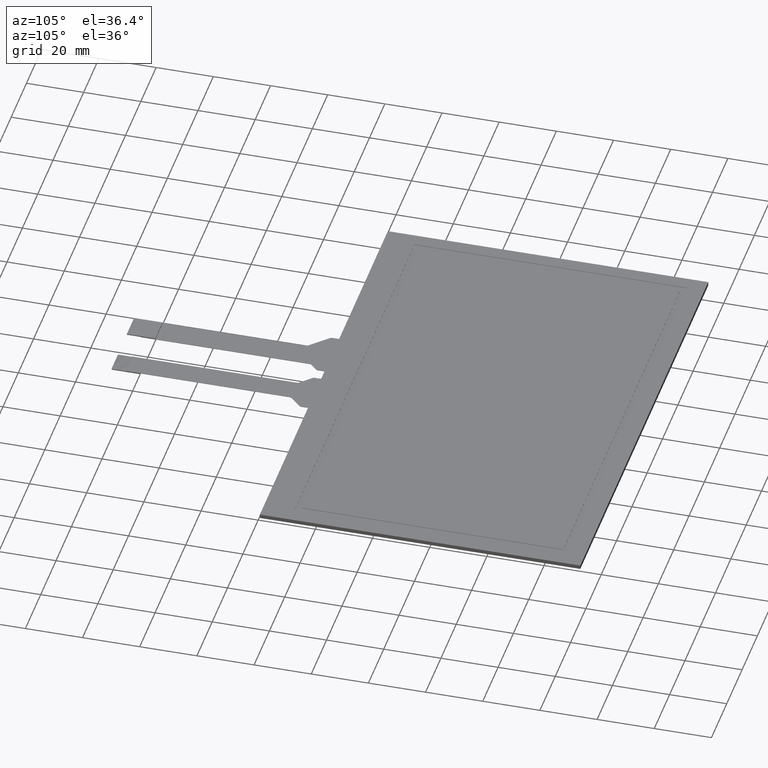
[diagram: clean part render]
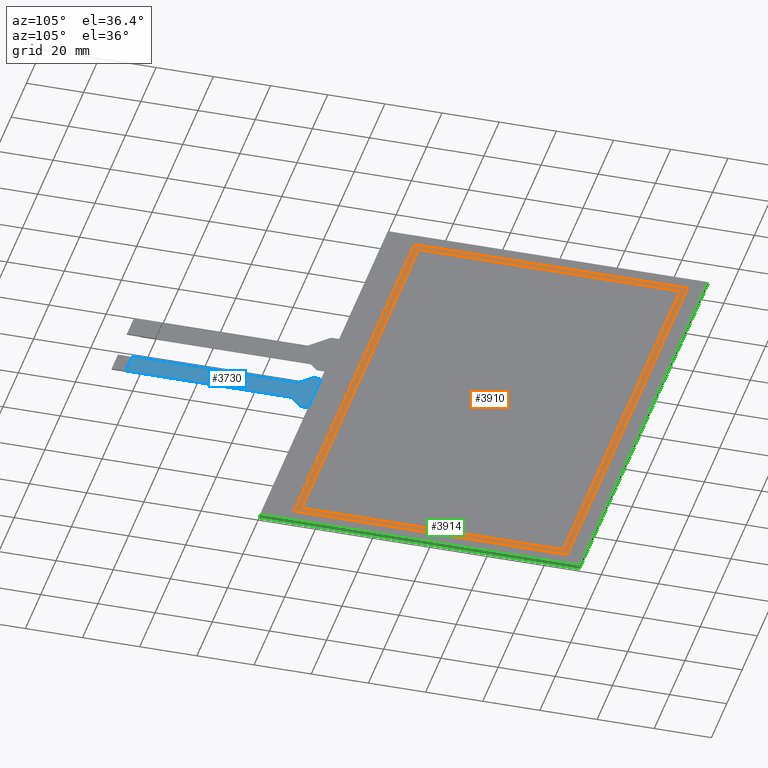
[diagram: same view with three faces highlighted in distinct colors, each labeled with its STEP entity id]
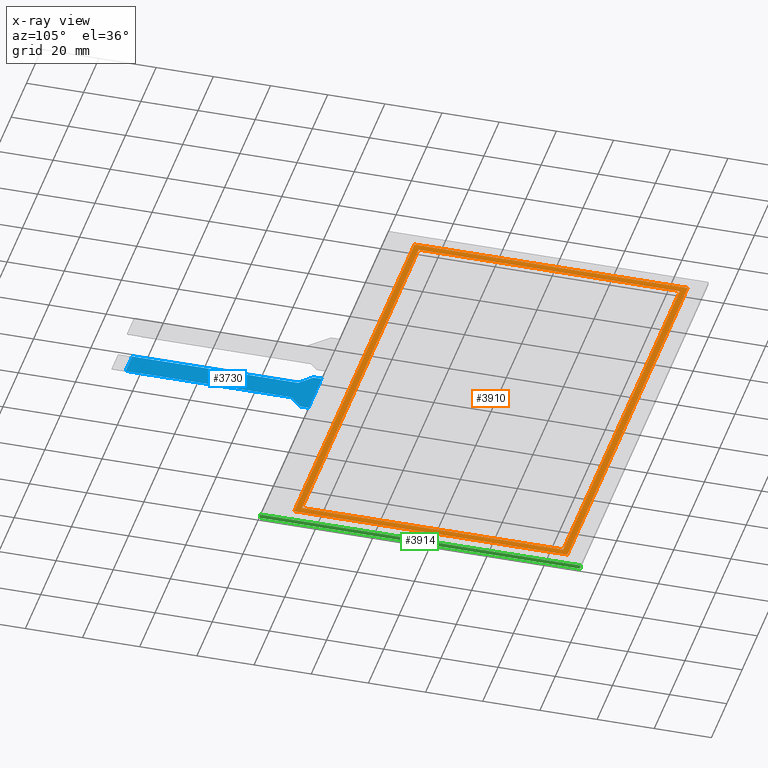
[diagram: x-ray of the same camera — body ghosted, the three highlighted faces saturated]
A machine part, auxiliary view with three faces highlighted in distinct colors.
The next image is the same camera in x-ray (body ghosted, the three faces saturated) — at least one of them is partly hidden behind the body in this view.
Their STEP definitions:

[orange] entity #3910 — the highlighted planar face has unit normal (0, 0, -1).
#46=FACE_BOUND('',#601,.T.);
#220=PLANE('',#4144);
#410=FACE_OUTER_BOUND('',#600,.T.);
#600=EDGE_LOOP('',(#3668,#3669,#3670,#3671));
#601=EDGE_LOOP('',(#3672,#3673,#3674,#3675));
#1106=LINE('',#6152,#1634);
#1110=LINE('',#6159,#1638);
#1113=LINE('',#6165,#1641);
#1115=LINE('',#6168,#1643);
#1118=LINE('',#6176,#1646);
#1122=LINE('',#6183,#1650);
#1125=LINE('',#6189,#1653);
#1127=LINE('',#6192,#1655);
#1634=VECTOR('',#5046,10.);
#1638=VECTOR('',#5052,10.);
#1641=VECTOR('',#5057,10.);
#1643=VECTOR('',#5061,10.);
#1646=VECTOR('',#5066,10.);
#1650=VECTOR('',#5072,10.);
#1653=VECTOR('',#5077,10.);
#1655=VECTOR('',#5081,10.);
#2038=VERTEX_POINT('',#6149);
#2039=VERTEX_POINT('',#6151);
#2041=VERTEX_POINT('',#6157);
#2043=VERTEX_POINT('',#6163);
#2046=VERTEX_POINT('',#6173);
#2047=VERTEX_POINT('',#6175);
#2049=VERTEX_POINT('',#6181);
#2051=VERTEX_POINT('',#6187);
#2578=EDGE_CURVE('',#2038,#2039,#1106,.T.);
#2582=EDGE_CURVE('',#2041,#2038,#1110,.T.);
#2585=EDGE_CURVE('',#2043,#2041,#1113,.T.);
#2587=EDGE_CURVE('',#2039,#2043,#1115,.T.);
#2590=EDGE_CURVE('',#2046,#2047,#1118,.T.);
#2594=EDGE_CURVE('',#2049,#2046,#1122,.T.);
#2597=EDGE_CURVE('',#2051,#2049,#1125,.T.);
#2599=EDGE_CURVE('',#2047,#2051,#1127,.T.);
#3668=ORIENTED_EDGE('',*,*,#2599,.F.);
#3669=ORIENTED_EDGE('',*,*,#2590,.F.);
#3670=ORIENTED_EDGE('',*,*,#2594,.F.);
#3671=ORIENTED_EDGE('',*,*,#2597,.F.);
#3672=ORIENTED_EDGE('',*,*,#2587,.F.);
#3673=ORIENTED_EDGE('',*,*,#2578,.F.);
#3674=ORIENTED_EDGE('',*,*,#2582,.F.);
#3675=ORIENTED_EDGE('',*,*,#2585,.F.);
#3910=ADVANCED_FACE('',(#410,#46),#220,.F.);
#4144=AXIS2_PLACEMENT_3D('',#6193,#5082,#5083);
#5046=DIRECTION('',(1.,0.,0.));
#5052=DIRECTION('',(0.,-1.,0.));
#5057=DIRECTION('',(-1.,0.,0.));
#5061=DIRECTION('',(0.,1.,0.));
#5066=DIRECTION('',(-9.30029758848298E-17,1.,0.));
#5072=DIRECTION('',(-1.,-1.69607591285829E-16,0.));
#5077=DIRECTION('',(9.30029758848299E-17,-1.,0.));
#5081=DIRECTION('',(1.,0.,0.));
#5082=DIRECTION('center_axis',(0.,0.,-1.));
#5083=DIRECTION('ref_axis',(-1.,0.,0.));
#6149=CARTESIAN_POINT('',(-76.2,-45.72,-0.1));
#6151=CARTESIAN_POINT('',(76.2,-45.72,-0.1));
#6152=CARTESIAN_POINT('',(76.2,-45.72,-0.1));
#6157=CARTESIAN_POINT('',(-76.2,45.72,-0.1));
#6159=CARTESIAN_POINT('',(-76.2,-45.72,-0.1));
#6163=CARTESIAN_POINT('',(76.2,45.72,-0.1));
#6165=CARTESIAN_POINT('',(-76.2,45.72,-0.1));
#6168=CARTESIAN_POINT('',(76.2,45.72,-0.1));
#6173=CARTESIAN_POINT('',(-78.55,-47.75,-0.1));
#6175=CARTESIAN_POINT('',(-78.55,47.75,-0.1));
#6176=CARTESIAN_POINT('',(-78.55,47.75,-0.1));
#6181=CARTESIAN_POINT('',(78.55,-47.75,-0.1));
#6183=CARTESIAN_POINT('',(-78.55,-47.75,-0.1));
#6187=CARTESIAN_POINT('',(78.55,47.75,-0.1));
#6189=CARTESIAN_POINT('',(78.55,-47.75,-0.1));
#6192=CARTESIAN_POINT('',(78.55,47.75,-0.1));
#6193=CARTESIAN_POINT('Origin',(-2.66453525910038E-14,1.77635683940025E-14,
-0.1));

[blue] entity #3730 — the highlighted planar face has unit normal (0, 0, 1).
#51=PLANE('',#3942);
#230=FACE_OUTER_BOUND('',#420,.T.);
#420=EDGE_LOOP('',(#2620,#2621,#2622,#2623,#2624,#2625,#2626,#2627,#2628,
#2629,#2630,#2631));
#614=LINE('',#5122,#1142);
#617=LINE('',#5128,#1145);
#618=LINE('',#5130,#1146);
#619=LINE('',#5132,#1147);
#620=LINE('',#5136,#1148);
#621=LINE('',#5140,#1149);
#622=LINE('',#5142,#1150);
#623=LINE('',#5144,#1151);
#1142=VECTOR('',#4164,10.);
#1145=VECTOR('',#4169,10.);
#1146=VECTOR('',#4170,10.);
#1147=VECTOR('',#4171,10.);
#1148=VECTOR('',#4174,10.);
#1149=VECTOR('',#4177,10.);
#1150=VECTOR('',#4178,10.);
#1151=VECTOR('',#4179,10.);
#1669=CIRCLE('',#3940,1.);
#1670=CIRCLE('',#3943,1.);
#1671=CIRCLE('',#3944,1.);
#1672=CIRCLE('',#3945,1.);
#1694=VERTEX_POINT('',#5115);
#1695=VERTEX_POINT('',#5117);
#1696=VERTEX_POINT('',#5121);
#1698=VERTEX_POINT('',#5127);
#1699=VERTEX_POINT('',#5129);
#1700=VERTEX_POINT('',#5131);
#1701=VERTEX_POINT('',#5133);
#1702=VERTEX_POINT('',#5135);
#1703=VERTEX_POINT('',#5137);
#1704=VERTEX_POINT('',#5139);
#1705=VERTEX_POINT('',#5141);
#1706=VERTEX_POINT('',#5143);
#2062=EDGE_CURVE('',#1694,#1695,#1669,.T.);
#2064=EDGE_CURVE('',#1696,#1695,#614,.T.);
#2067=EDGE_CURVE('',#1694,#1698,#617,.T.);
#2068=EDGE_CURVE('',#1699,#1698,#618,.T.);
#2069=EDGE_CURVE('',#1699,#1700,#619,.T.);
#2070=EDGE_CURVE('',#1701,#1700,#1670,.T.);
#2071=EDGE_CURVE('',#1701,#1702,#620,.T.);
#2072=EDGE_CURVE('',#1703,#1702,#1671,.T.);
#2073=EDGE_CURVE('',#1703,#1704,#621,.T.);
#2074=EDGE_CURVE('',#1704,#1705,#622,.T.);
#2075=EDGE_CURVE('',#1705,#1706,#623,.T.);
#2076=EDGE_CURVE('',#1696,#1706,#1672,.T.);
#2620=ORIENTED_EDGE('',*,*,#2062,.F.);
#2621=ORIENTED_EDGE('',*,*,#2067,.T.);
#2622=ORIENTED_EDGE('',*,*,#2068,.F.);
#2623=ORIENTED_EDGE('',*,*,#2069,.T.);
#2624=ORIENTED_EDGE('',*,*,#2070,.F.);
#2625=ORIENTED_EDGE('',*,*,#2071,.T.);
#2626=ORIENTED_EDGE('',*,*,#2072,.F.);
#2627=ORIENTED_EDGE('',*,*,#2073,.T.);
#2628=ORIENTED_EDGE('',*,*,#2074,.T.);
#2629=ORIENTED_EDGE('',*,*,#2075,.T.);
#2630=ORIENTED_EDGE('',*,*,#2076,.F.);
#2631=ORIENTED_EDGE('',*,*,#2064,.T.);
#3730=ADVANCED_FACE('',(#230),#51,.T.);
#3940=AXIS2_PLACEMENT_3D('',#5118,#4159,#4160);
#3942=AXIS2_PLACEMENT_3D('',#5126,#4167,#4168);
#3943=AXIS2_PLACEMENT_3D('',#5134,#4172,#4173);
#3944=AXIS2_PLACEMENT_3D('',#5138,#4175,#4176);
#3945=AXIS2_PLACEMENT_3D('',#5145,#4180,#4181);
#4159=DIRECTION('center_axis',(0.,0.,-1.));
#4160=DIRECTION('ref_axis',(0.925215014364889,-0.379443246340976,0.));
#4164=DIRECTION('',(0.702133177228052,0.712045645612443,0.));
#4167=DIRECTION('center_axis',(0.,0.,1.));
#4168=DIRECTION('ref_axis',(1.,0.,0.));
#4169=DIRECTION('',(0.,1.,0.));
#4170=DIRECTION('',(1.,5.31525086594928E-17,0.));
#4171=DIRECTION('',(0.,-1.,0.));
#4172=DIRECTION('center_axis',(0.,0.,-1.));
#4173=DIRECTION('ref_axis',(-0.922532703276164,-0.385918918149878,0.));
#4174=DIRECTION('',(0.712045645612444,-0.702133177228051,0.));
#4175=DIRECTION('center_axis',(0.,0.,1.));
#4176=DIRECTION('ref_axis',(0.922532703276165,0.385918918149878,0.));
#4177=DIRECTION('',(1.23256959858111E-16,-1.,0.));
#4178=DIRECTION('',(1.,0.,0.));
#4179=DIRECTION('',(-6.71897992287879E-16,1.,0.));
#4180=DIRECTION('center_axis',(0.,0.,1.));
#4181=DIRECTION('ref_axis',(-0.925215014364886,0.379443246340983,0.));
#5115=CARTESIAN_POINT('',(20.25,-60.9398864151038,-0.2));
#5117=CARTESIAN_POINT('',(19.9620456456124,-61.6420195923318,-0.2));
#5118=CARTESIAN_POINT('Origin',(19.25,-60.9398864151038,-0.2));
#5121=CARTESIAN_POINT('',(16.2879543543875,-65.3679804076681,-0.2));
#5122=CARTESIAN_POINT('',(16.,-65.66,-0.2));
#5126=CARTESIAN_POINT('Origin',(11.75,-93.45,-0.2));
#5127=CARTESIAN_POINT('',(20.25,-58.45,-0.2));
#5128=CARTESIAN_POINT('',(20.25,-61.35,-0.2));
#5129=CARTESIAN_POINT('',(3.24999999999999,-58.45,-0.2));
#5130=CARTESIAN_POINT('',(47.65,-58.45,-0.2));
#5131=CARTESIAN_POINT('',(3.24999999999999,-60.7891367047056,-0.2));
#5132=CARTESIAN_POINT('',(3.24999999999999,-58.45,-0.2));
#5133=CARTESIAN_POINT('',(3.54786682277194,-61.5011823503181,-0.2));
#5134=CARTESIAN_POINT('Origin',(4.24999999999999,-60.7891367047056,-0.2));
#5135=CARTESIAN_POINT('',(7.20213317722804,-65.1045772474036,-0.2));
#5136=CARTESIAN_POINT('',(3.24999999999999,-61.2074621654501,-0.2));
#5137=CARTESIAN_POINT('',(7.49999999999999,-65.816622893016,-0.2));
#5138=CARTESIAN_POINT('Origin',(6.49999999999999,-65.816622893016,-0.2));
#5139=CARTESIAN_POINT('',(7.49999999999999,-123.45,-0.2));
#5140=CARTESIAN_POINT('',(7.49999999999999,-65.3982974322715,-0.2));
#5141=CARTESIAN_POINT('',(16.,-123.45,-0.2));
#5142=CARTESIAN_POINT('',(9.62499999999999,-123.45,-0.2));
#5143=CARTESIAN_POINT('',(16.,-66.0701135848962,-0.2));
#5144=CARTESIAN_POINT('',(16.,-128.45,-0.2));
#5145=CARTESIAN_POINT('Origin',(17.,-66.0701135848962,-0.2));

[green] entity #3914 — the highlighted planar face has unit normal (1, 0, 0).
#224=PLANE('',#4148);
#414=FACE_OUTER_BOUND('',#608,.T.);
#608=EDGE_LOOP('',(#3700,#3701,#3702,#3703));
#1131=LINE('',#6202,#1659);
#1136=LINE('',#6212,#1664);
#1137=LINE('',#6215,#1665);
#1138=LINE('',#6216,#1666);
#1659=VECTOR('',#5089,10.);
#1664=VECTOR('',#5098,10.);
#1665=VECTOR('',#5101,10.);
#1666=VECTOR('',#5102,10.);
#2052=VERTEX_POINT('',#6195);
#2055=VERTEX_POINT('',#6200);
#2058=VERTEX_POINT('',#6210);
#2059=VERTEX_POINT('',#6214);
#2603=EDGE_CURVE('',#2055,#2052,#1131,.T.);
#2608=EDGE_CURVE('',#2055,#2058,#1136,.T.);
#2609=EDGE_CURVE('',#2059,#2058,#1137,.T.);
#2610=EDGE_CURVE('',#2052,#2059,#1138,.T.);
#3700=ORIENTED_EDGE('',*,*,#2603,.F.);
#3701=ORIENTED_EDGE('',*,*,#2608,.T.);
#3702=ORIENTED_EDGE('',*,*,#2609,.F.);
#3703=ORIENTED_EDGE('',*,*,#2610,.F.);
#3914=ADVANCED_FACE('',(#414),#224,.T.);
#4148=AXIS2_PLACEMENT_3D('',#6213,#5099,#5100);
#5089=DIRECTION('',(0.,1.,0.));
#5098=DIRECTION('',(0.,0.,-1.));
#5099=DIRECTION('center_axis',(1.,0.,0.));
#5100=DIRECTION('ref_axis',(0.,-1.,0.));
#5101=DIRECTION('',(0.,-1.,0.));
#5102=DIRECTION('',(0.,0.,-1.));
#6195=CARTESIAN_POINT('',(83.55,53.65,0.));
#6200=CARTESIAN_POINT('',(83.55,-58.45,0.));
#6202=CARTESIAN_POINT('',(83.55,-58.45,0.));
#6210=CARTESIAN_POINT('',(83.55,-58.45,-1.4));
#6212=CARTESIAN_POINT('',(83.55,-58.45,0.));
#6213=CARTESIAN_POINT('Origin',(83.55,53.65,0.));
#6214=CARTESIAN_POINT('',(83.55,53.65,-1.4));
#6215=CARTESIAN_POINT('',(83.55,-58.45,-1.4));
#6216=CARTESIAN_POINT('',(83.55,53.65,0.));